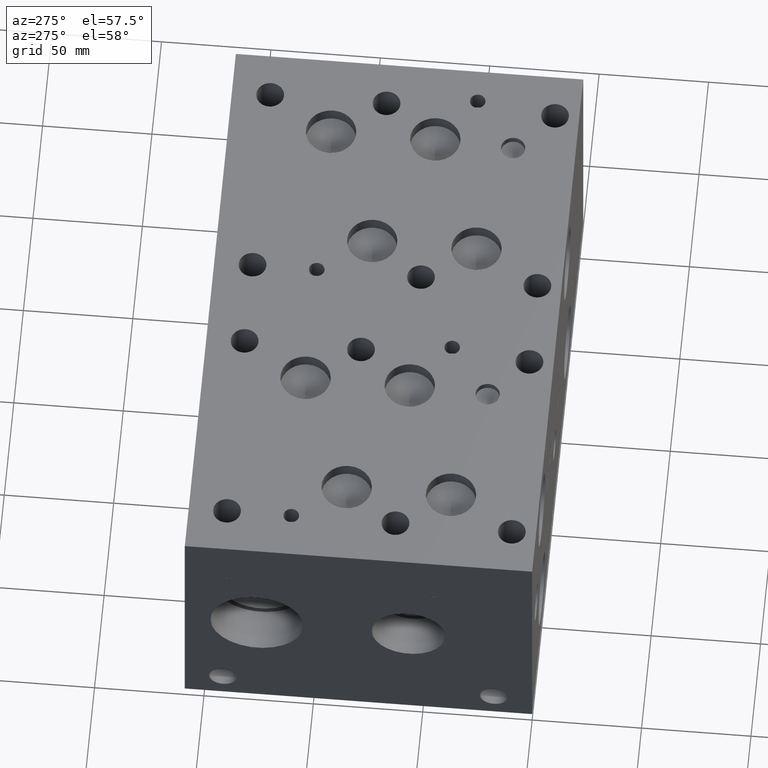
[diagram: clean part render]
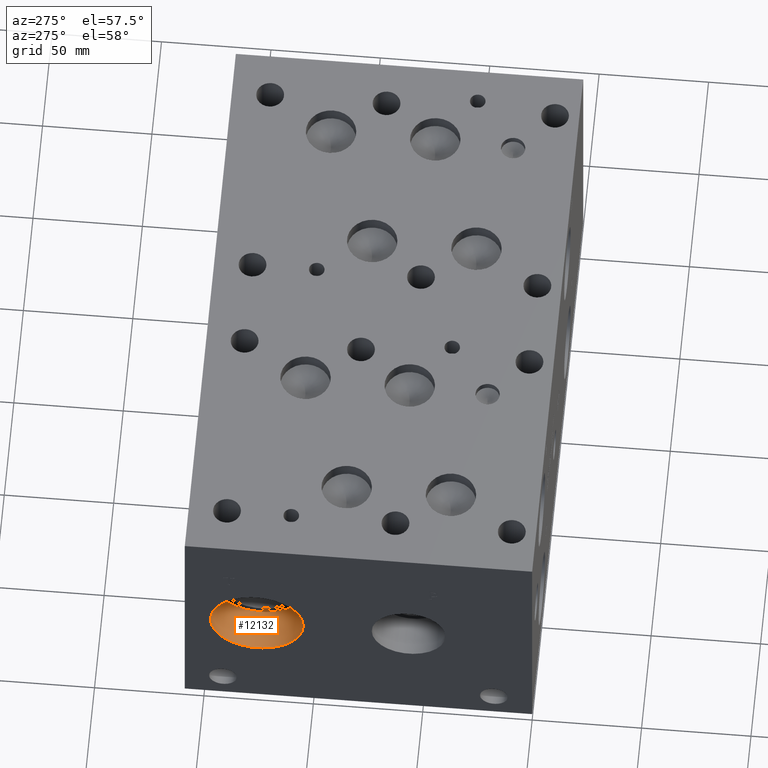
[diagram: same view with one face highlighted and labeled with its STEP entity id]
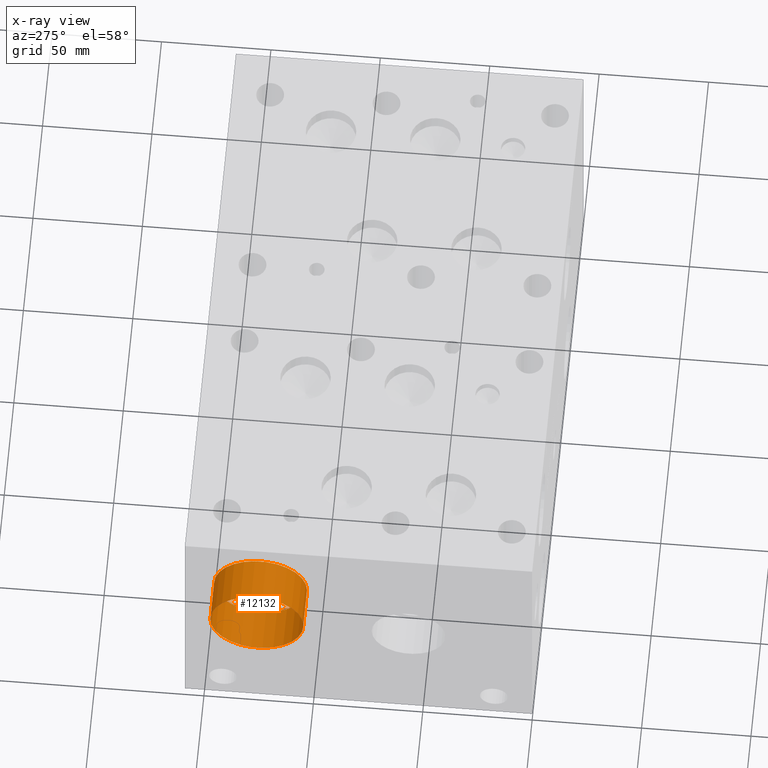
[diagram: x-ray of the same camera — body ghosted, the highlighted face saturated]
A machine part, auxiliary view. The second image highlights one B-rep face of the part: STEP entity #12132.
The next image is the same camera in x-ray: the body ghosted, the highlighted face saturated — about 0% of this face is hidden behind the body in this view.
In plain terms, the highlighted cylindrical surface (bore or boss wall) has radius 21.2344 mm, axis along (-1, 0, 0).
Its self-contained STEP definition (entity closure, byte-faithful):
#25=CYLINDRICAL_SURFACE('',#12681,21.2344);
#142=CIRCLE('',#12320,21.2344);
#143=CIRCLE('',#12321,21.2344);
#187=CIRCLE('',#12678,21.2344);
#188=CIRCLE('',#12679,21.2344);
#1471=FACE_OUTER_BOUND('',#2168,.T.);
#2168=EDGE_LOOP('',(#10179,#10180,#10181,#10182,#10183,#10184));
#3360=LINE('',#20456,#4480);
#4480=VECTOR('',#14844,21.2344);
#4695=VERTEX_POINT('',#16106);
#4696=VERTEX_POINT('',#16107);
#5521=VERTEX_POINT('',#20449);
#5522=VERTEX_POINT('',#20450);
#5913=EDGE_CURVE('',#4695,#4696,#142,.T.);
#5914=EDGE_CURVE('',#4696,#4695,#143,.T.);
#7143=EDGE_CURVE('',#5521,#5522,#187,.T.);
#7144=EDGE_CURVE('',#5522,#5521,#188,.T.);
#7146=EDGE_CURVE('',#4696,#5522,#3360,.T.);
#10179=ORIENTED_EDGE('',*,*,#5913,.F.);
#10180=ORIENTED_EDGE('',*,*,#5914,.F.);
#10181=ORIENTED_EDGE('',*,*,#7146,.T.);
#10182=ORIENTED_EDGE('',*,*,#7143,.F.);
#10183=ORIENTED_EDGE('',*,*,#7144,.F.);
#10184=ORIENTED_EDGE('',*,*,#7146,.F.);
#12132=ADVANCED_FACE('',(#1471),#25,.F.);
#12320=AXIS2_PLACEMENT_3D('',#16108,#13217,#13218);
#12321=AXIS2_PLACEMENT_3D('',#16109,#13219,#13220);
#12678=AXIS2_PLACEMENT_3D('',#20451,#14836,#14837);
#12679=AXIS2_PLACEMENT_3D('',#20452,#14838,#14839);
#12681=AXIS2_PLACEMENT_3D('',#20455,#14842,#14843);
#13217=DIRECTION('center_axis',(1.,0.,0.));
#13218=DIRECTION('ref_axis',(0.,1.,0.));
#13219=DIRECTION('center_axis',(1.,0.,0.));
#13220=DIRECTION('ref_axis',(0.,1.,0.));
#14836=DIRECTION('center_axis',(-1.,0.,0.));
#14837=DIRECTION('ref_axis',(0.,1.,0.));
#14838=DIRECTION('center_axis',(-1.,0.,0.));
#14839=DIRECTION('ref_axis',(0.,1.,0.));
#14842=DIRECTION('center_axis',(-1.,0.,0.));
#14843=DIRECTION('ref_axis',(0.,1.,0.));
#14844=DIRECTION('',(1.,0.,0.));
#16106=CARTESIAN_POINT('',(0.,147.066,60.325));
#16107=CARTESIAN_POINT('',(0.,104.5972,60.325));
#16108=CARTESIAN_POINT('Origin',(0.,125.8316,60.325));
#16109=CARTESIAN_POINT('Origin',(0.,125.8316,60.325));
#20449=CARTESIAN_POINT('',(19.5072,147.066,60.325));
#20450=CARTESIAN_POINT('',(19.5072,104.5972,60.325));
#20451=CARTESIAN_POINT('Origin',(19.5072,125.8316,60.325));
#20452=CARTESIAN_POINT('Origin',(19.5072,125.8316,60.325));
#20455=CARTESIAN_POINT('Origin',(9.7536,125.8316,60.325));
#20456=CARTESIAN_POINT('',(9.7536,104.5972,60.325));